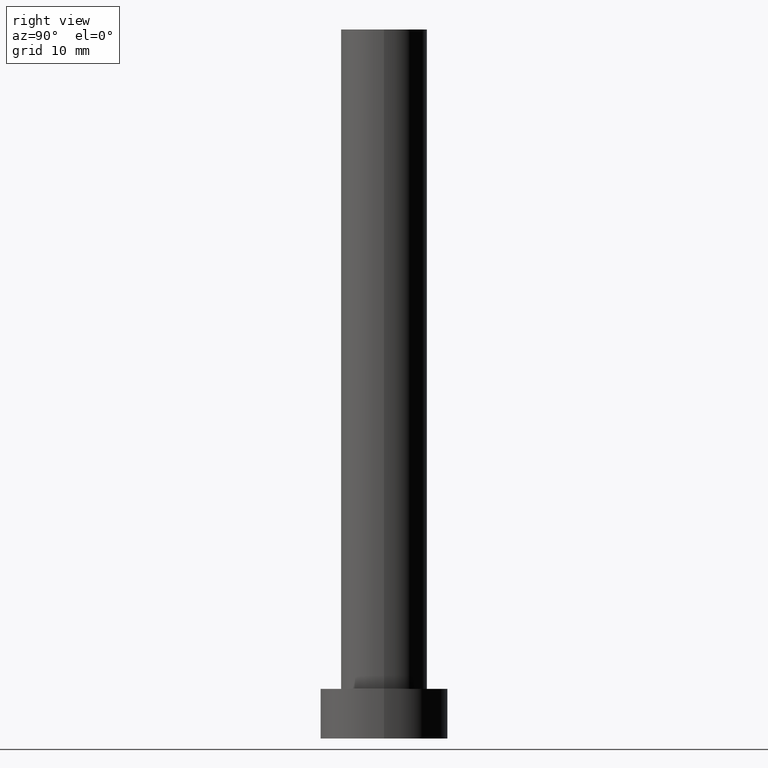
[diagram: clean part render]
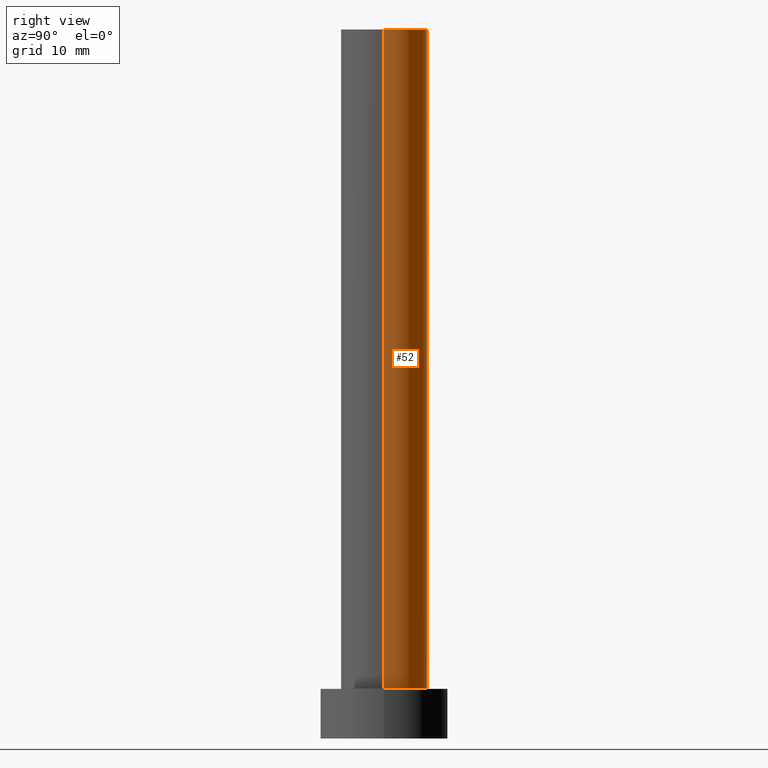
[diagram: same view with one face highlighted and labeled with its STEP entity id]
A machine part, right view. The second image highlights one B-rep face of the part: STEP entity #52.
In plain terms, the highlighted cylindrical surface (partial cylindrical patch) has radius 6.1 mm, axis along (-0, -0, -1).
Its self-contained STEP definition (entity closure, byte-faithful):
#1 = CARTESIAN_POINT ( 'NONE',  ( 6.099999999999999645, 7.470345474798852320E-16, 100.0000000000000000 ) ) ;
#4 = AXIS2_PLACEMENT_3D ( 'NONE', #196, #84, #217 ) ;
#9 = VECTOR ( 'NONE', #107, 1000.000000000000000 ) ;
#10 = EDGE_LOOP ( 'NONE', ( #96, #36, #193, #195 ) ) ;
#13 = EDGE_CURVE ( 'NONE', #16, #140, #89, .T. ) ;
#16 = VERTEX_POINT ( 'NONE', #1 ) ;
#21 = DIRECTION ( 'NONE',  ( 1.000000000000000000, 0.000000000000000000, 0.000000000000000000 ) ) ;
#23 = LINE ( 'NONE', #44, #9 ) ;
#33 = EDGE_CURVE ( 'NONE', #16, #160, #177, .T. ) ;
#36 = ORIENTED_EDGE ( 'NONE', *, *, #33, .T. ) ;
#44 = CARTESIAN_POINT ( 'NONE',  ( -6.099999999999999645, 0.000000000000000000, 100.0000000000000000 ) ) ;
#46 = CARTESIAN_POINT ( 'NONE',  ( -6.099999999999999645, 0.000000000000000000, 7.000000000000000000 ) ) ;
#52 = ADVANCED_FACE ( 'NONE', ( #106 ), #102, .T. ) ;
#57 = AXIS2_PLACEMENT_3D ( 'NONE', #123, #253, #21 ) ;
#84 = DIRECTION ( 'NONE',  ( 0.000000000000000000, 0.000000000000000000, 1.000000000000000000 ) ) ;
#89 = CIRCLE ( 'NONE', #4, 6.099999999999999645 ) ;
#92 = EDGE_CURVE ( 'NONE', #160, #248, #151, .T. ) ;
#96 = ORIENTED_EDGE ( 'NONE', *, *, #13, .F. ) ;
#102 = CYLINDRICAL_SURFACE ( 'NONE', #170, 6.099999999999999645 ) ;
#106 = FACE_OUTER_BOUND ( 'NONE', #10, .T. ) ;
#107 = DIRECTION ( 'NONE',  ( -0.000000000000000000, -0.000000000000000000, -1.000000000000000000 ) ) ;
#112 = EDGE_CURVE ( 'NONE', #140, #248, #23, .T. ) ;
#119 = CARTESIAN_POINT ( 'NONE',  ( 0.000000000000000000, 0.000000000000000000, 100.0000000000000000 ) ) ;
#123 = CARTESIAN_POINT ( 'NONE',  ( 0.000000000000000000, 0.000000000000000000, 7.000000000000000000 ) ) ;
#140 = VERTEX_POINT ( 'NONE', #221 ) ;
#141 = CARTESIAN_POINT ( 'NONE',  ( 6.099999999999999645, 7.470345474798852320E-16, 100.0000000000000000 ) ) ;
#151 = CIRCLE ( 'NONE', #57, 6.099999999999999645 ) ;
#157 = VECTOR ( 'NONE', #159, 1000.000000000000000 ) ;
#159 = DIRECTION ( 'NONE',  ( -0.000000000000000000, -0.000000000000000000, -1.000000000000000000 ) ) ;
#160 = VERTEX_POINT ( 'NONE', #167 ) ;
#167 = CARTESIAN_POINT ( 'NONE',  ( 6.099999999999999645, 7.470345474798852320E-16, 7.000000000000000000 ) ) ;
#170 = AXIS2_PLACEMENT_3D ( 'NONE', #119, #236, #254 ) ;
#177 = LINE ( 'NONE', #141, #157 ) ;
#193 = ORIENTED_EDGE ( 'NONE', *, *, #92, .T. ) ;
#195 = ORIENTED_EDGE ( 'NONE', *, *, #112, .F. ) ;
#196 = CARTESIAN_POINT ( 'NONE',  ( 0.000000000000000000, 0.000000000000000000, 100.0000000000000000 ) ) ;
#217 = DIRECTION ( 'NONE',  ( 1.000000000000000000, 0.000000000000000000, 0.000000000000000000 ) ) ;
#221 = CARTESIAN_POINT ( 'NONE',  ( -6.099999999999999645, 0.000000000000000000, 100.0000000000000000 ) ) ;
#236 = DIRECTION ( 'NONE',  ( -0.000000000000000000, -0.000000000000000000, -1.000000000000000000 ) ) ;
#248 = VERTEX_POINT ( 'NONE', #46 ) ;
#253 = DIRECTION ( 'NONE',  ( 0.000000000000000000, 0.000000000000000000, 1.000000000000000000 ) ) ;
#254 = DIRECTION ( 'NONE',  ( -1.000000000000000000, 0.000000000000000000, 0.000000000000000000 ) ) ;